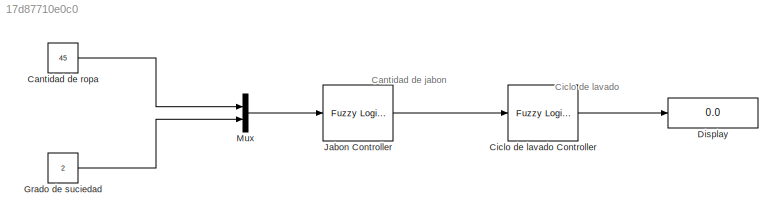
MODEL slx_17d87710e0c0
KIND model
CONFIG AbsTol = auto
CONFIG EnableMultiTasking = off
CONFIG FixedStep = auto
CONFIG MaxStep = auto
CONFIG MinStep = auto
CONFIG RelTol = 1e-3
CONFIG SampleTimeConstraint = Unconstrained
CONFIG SolverName = VariableStepAuto
CONFIG StartTime = 0.0
CONFIG StopTime = 10.0
BLOCK [Constant] Cantidad de ropa
  Value = 45
BLOCK [Reference] Ciclo de lavado Controller  REF=fuzblock/Fuzzy Logic   (lib defined in mdl_858b3b3e7478)
Controller
  Ports = [1, 1]
  SourceBlock = fuzblock/Fuzzy Logic \nController
  SourceProductBaseCode = FL
  SourceType = Fuzzy Inference System
BLOCK [Display] Display
  Decimation = 1
  Ports = [1]
BLOCK [Constant] Grado de suciedad
  Value = 2
BLOCK [Reference] Jabon Controller  REF=fuzblock/Fuzzy Logic   (lib defined in mdl_858b3b3e7478)
Controller
  Ports = [1, 1]
  SourceBlock = fuzblock/Fuzzy Logic \nController
  SourceProductBaseCode = FL
  SourceType = Fuzzy Inference System
BLOCK [Mux] Mux
  DisplayOption = bar
  Inputs = 2
  Ports = [2, 1]
ANNOTATION (root): Cantidad de jabon
ANNOTATION (root): Ciclo de lavado
LINE Cantidad de ropa:1 -> Mux:1
LINE Ciclo de lavado Controller:1 -> Display:1
LINE Grado de suciedad:1 -> Mux:2
LINE Jabon Controller:1 -> Ciclo de lavado Controller:1
LINE Mux:1 -> Jabon Controller:1
